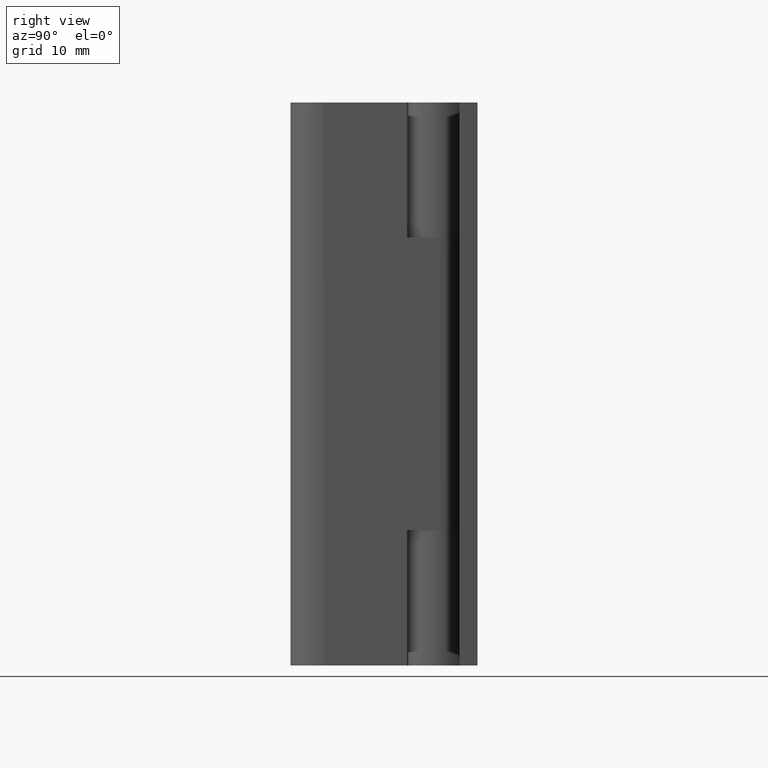
[diagram: clean part render]
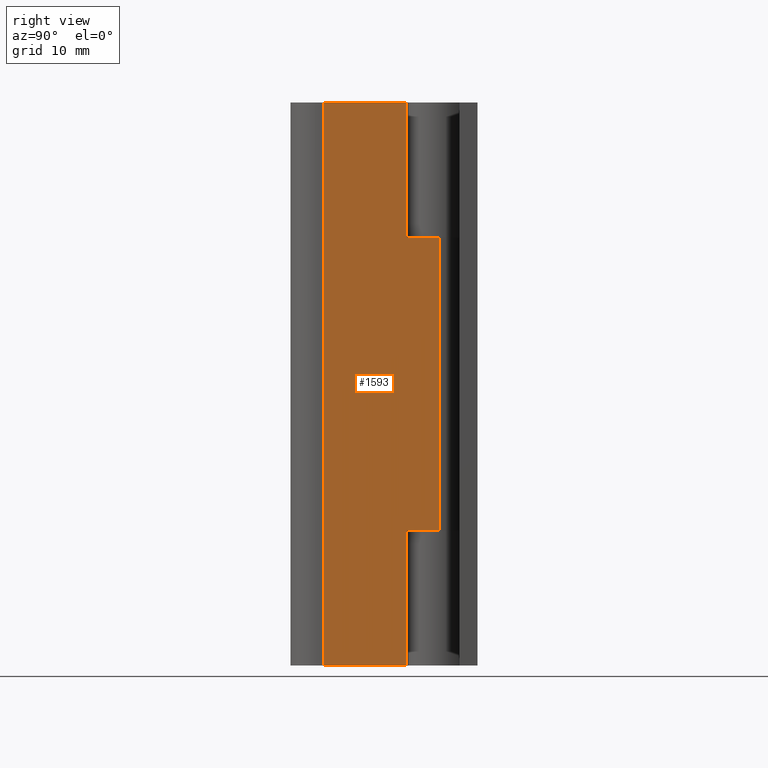
[diagram: same view with one face highlighted and labeled with its STEP entity id]
A machine part, right view. The second image highlights one B-rep face of the part: STEP entity #1593.
In plain terms, the highlighted face is a freeform B-spline surface patch.
Its self-contained STEP definition (entity closure, byte-faithful):
#893=CARTESIAN_POINT('',(2.834421485123410,-3.170903217421611,38.000006999999897));
#894=VERTEX_POINT('',#893);
#909=CARTESIAN_POINT('',(2.834421485123410,-3.170903217421611,50.000006999999897));
#910=VERTEX_POINT('',#909);
#916=CARTESIAN_POINT('',(2.834421485123410,-3.170903217421611,50.000006999999897));
#917=CARTESIAN_POINT('',(2.834421485123410,-3.170903217421611,38.000006999999897));
#918=QUASI_UNIFORM_CURVE('',1,(#916,#917),.UNSPECIFIED.,.F.,.U.);
#919=EDGE_CURVE('',#910,#894,#918,.T.);
#958=CARTESIAN_POINT('',(3.088202999999895,-0.270184000000000,38.000006999999897));
#959=VERTEX_POINT('',#958);
#960=CARTESIAN_POINT('',(3.088202999999895,-0.270184000000000,38.000006999999897));
#961=CARTESIAN_POINT('',(2.834421485123410,-3.170903217421611,38.000006999999897));
#962=QUASI_UNIFORM_CURVE('',1,(#960,#961),.UNSPECIFIED.,.F.,.U.);
#963=EDGE_CURVE('',#959,#894,#962,.T.);
#999=CARTESIAN_POINT('',(2.834421485123410,-3.170903217421611,12.0));
#1000=VERTEX_POINT('',#999);
#1008=CARTESIAN_POINT('',(2.834421485123410,-3.170903217421611,0.0));
#1009=VERTEX_POINT('',#1008);
#1010=CARTESIAN_POINT('',(2.834421485123410,-3.170903217421611,0.0));
#1011=CARTESIAN_POINT('',(2.834421485123410,-3.170903217421611,12.0));
#1012=QUASI_UNIFORM_CURVE('',1,(#1010,#1011),.UNSPECIFIED.,.F.,.U.);
#1013=EDGE_CURVE('',#1009,#1000,#1012,.T.);
#1070=CARTESIAN_POINT('',(3.088202999999895,-0.270184000000000,12.0));
#1071=VERTEX_POINT('',#1070);
#1091=CARTESIAN_POINT('',(3.088202999999895,-0.270184000000000,12.0));
#1092=CARTESIAN_POINT('',(2.834421485123410,-3.170903217421611,12.0));
#1093=QUASI_UNIFORM_CURVE('',1,(#1091,#1092),.UNSPECIFIED.,.F.,.U.);
#1094=EDGE_CURVE('',#1071,#1000,#1093,.T.);
#1256=CARTESIAN_POINT('',(2.186302000000000,-10.578900000000001,50.000006999999897));
#1257=VERTEX_POINT('',#1256);
#1274=CARTESIAN_POINT('',(2.186302000000000,-10.578900000000001,0.0));
#1275=VERTEX_POINT('',#1274);
#1291=CARTESIAN_POINT('',(2.186302000000000,-10.578900000000001,0.0));
#1292=CARTESIAN_POINT('',(2.186302000000000,-10.578900000000001,50.000006999999897));
#1293=QUASI_UNIFORM_CURVE('',1,(#1291,#1292),.UNSPECIFIED.,.F.,.U.);
#1294=EDGE_CURVE('',#1275,#1257,#1293,.T.);
#1529=CARTESIAN_POINT('',(2.834421485123410,-3.170903217421611,0.0));
#1530=CARTESIAN_POINT('',(2.186302000000000,-10.578900000000001,0.0));
#1531=QUASI_UNIFORM_CURVE('',1,(#1529,#1530),.UNSPECIFIED.,.F.,.U.);
#1532=EDGE_CURVE('',#1009,#1275,#1531,.T.);
#1566=CARTESIAN_POINT('',(2.834421485123410,-3.170903217421611,50.000006999999897));
#1567=CARTESIAN_POINT('',(2.186302000000000,-10.578900000000001,50.000006999999897));
#1568=QUASI_UNIFORM_CURVE('',1,(#1566,#1567),.UNSPECIFIED.,.F.,.U.);
#1569=EDGE_CURVE('',#910,#1257,#1568,.T.);
#1574=CARTESIAN_POINT('',(3.133252953201831,0.244736344219707,-2.497500252740277));
#1575=CARTESIAN_POINT('',(2.141252022607193,-11.093820620721020,-2.497500252740277));
#1576=CARTESIAN_POINT('',(3.133252953201831,0.244736344219707,52.497508593844877));
#1577=CARTESIAN_POINT('',(2.141252022607193,-11.093820620721020,52.497508593844877));
#1578=B_SPLINE_SURFACE_WITH_KNOTS('',1,1,((#1574,#1576),(#1575,#1577)),.UNSPECIFIED.,.F.,.F.,.U.,(2,2),(2,2),(0.0,11.381868910398961),(0.0,54.995008846585172),.UNSPECIFIED.);
#1579=ORIENTED_EDGE('',*,*,#919,.F.);
#1580=ORIENTED_EDGE('',*,*,#1569,.T.);
#1581=ORIENTED_EDGE('',*,*,#1294,.F.);
#1582=ORIENTED_EDGE('',*,*,#1532,.F.);
#1583=ORIENTED_EDGE('',*,*,#1013,.T.);
#1584=ORIENTED_EDGE('',*,*,#1094,.F.);
#1585=CARTESIAN_POINT('',(3.088202999999895,-0.270184000000000,12.0));
#1586=CARTESIAN_POINT('',(3.088202999999895,-0.270184000000000,38.000006999999897));
#1587=QUASI_UNIFORM_CURVE('',1,(#1585,#1586),.UNSPECIFIED.,.F.,.U.);
#1588=EDGE_CURVE('',#1071,#959,#1587,.T.);
#1589=ORIENTED_EDGE('',*,*,#1588,.T.);
#1590=ORIENTED_EDGE('',*,*,#963,.T.);
#1591=EDGE_LOOP('',(#1579,#1580,#1581,#1582,#1583,#1584,#1589,#1590));
#1592=FACE_OUTER_BOUND('',#1591,.T.);
#1593=ADVANCED_FACE('',(#1592),#1578,.F.);